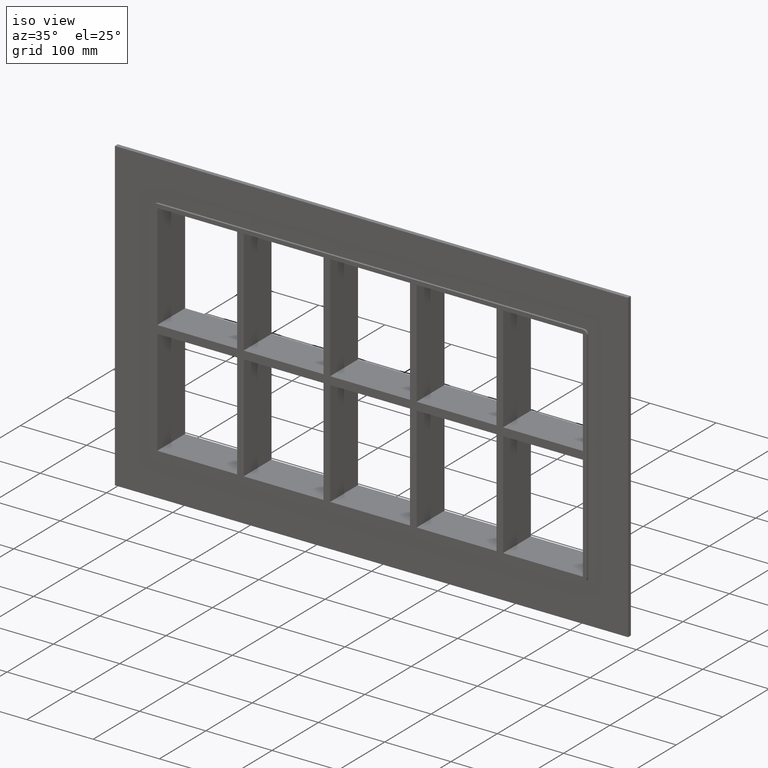
[diagram: clean part render]
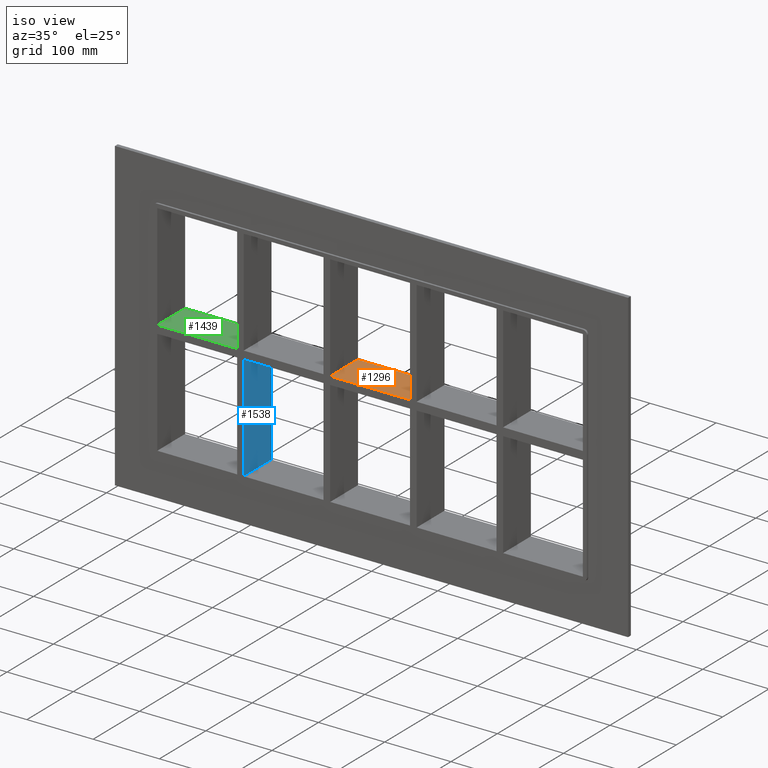
[diagram: same view with three faces highlighted in distinct colors, each labeled with its STEP entity id]
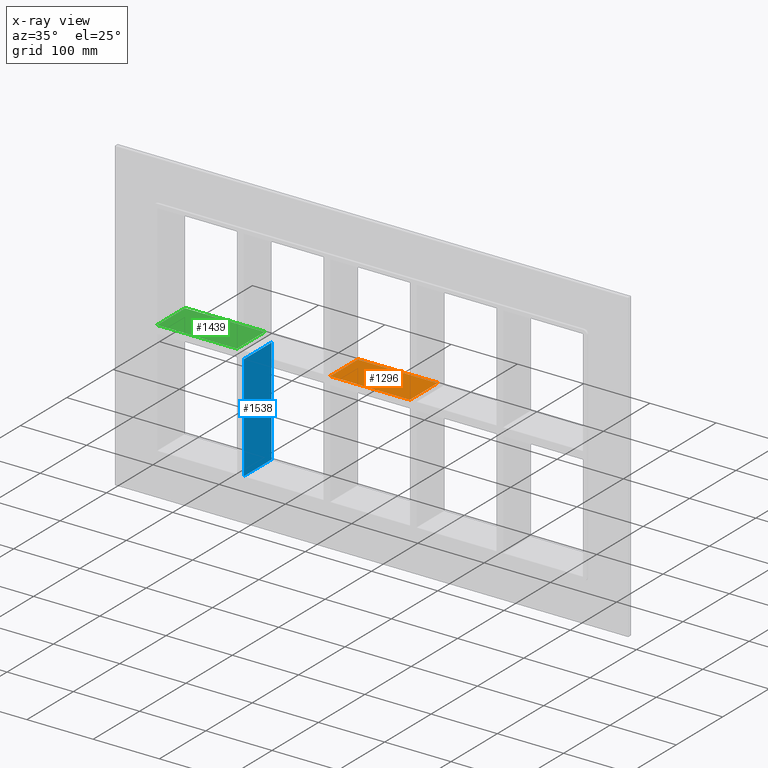
[diagram: x-ray of the same camera — body ghosted, the three highlighted faces saturated]
A machine part, iso view with three faces highlighted in distinct colors.
The next image is the same camera in x-ray (body ghosted, the three faces saturated) — at least one of them is partly hidden behind the body in this view.
Their STEP definitions:

[orange] entity #1296 — the highlighted planar face has unit normal (0, 0, 1).
#233=CARTESIAN_POINT('',(60.249999999998671,-3.0,5.999999999999943));
#234=VERTEX_POINT('',#233);
#235=CARTESIAN_POINT('',(60.249999999998671,57.0,5.999999999999943));
#236=VERTEX_POINT('',#235);
#237=CARTESIAN_POINT('',(60.24999999999865,-3.0,5.999999999999934));
#238=DIRECTION('',(0.0,1.0,0.0));
#239=VECTOR('',#238,60.0);
#240=LINE('',#237,#239);
#241=EDGE_CURVE('',#234,#236,#240,.T.);
#473=CARTESIAN_POINT('',(-60.250000000007269,57.0,5.999999999999943));
#474=VERTEX_POINT('',#473);
#475=CARTESIAN_POINT('',(-60.250000000007269,-3.0,5.999999999999943));
#476=VERTEX_POINT('',#475);
#477=CARTESIAN_POINT('',(-60.25000000000729,57.0,5.999999999999943));
#478=DIRECTION('',(0.0,-1.0,0.0));
#479=VECTOR('',#478,60.0);
#480=LINE('',#477,#479);
#481=EDGE_CURVE('',#474,#476,#480,.T.);
#767=CARTESIAN_POINT('',(-60.250000000007276,-3.0,5.999999999999943));
#768=DIRECTION('',(1.0,0.0,0.0));
#769=VECTOR('',#768,120.50000000000591);
#770=LINE('',#767,#769);
#771=EDGE_CURVE('',#476,#234,#770,.T.);
#1155=CARTESIAN_POINT('',(-60.250000000007276,57.0,5.999999999999943));
#1156=DIRECTION('',(1.0,0.0,0.0));
#1157=VECTOR('',#1156,120.50000000000591);
#1158=LINE('',#1155,#1157);
#1159=EDGE_CURVE('',#474,#236,#1158,.T.);
#1285=CARTESIAN_POINT('',(-321.24999999999972,-3.0,5.999999999999943));
#1286=DIRECTION('',(0.0,0.0,1.0));
#1287=DIRECTION('',(1.0,0.0,0.0));
#1288=AXIS2_PLACEMENT_3D('',#1285,#1286,#1287);
#1289=PLANE('',#1288);
#1290=ORIENTED_EDGE('',*,*,#241,.T.);
#1291=ORIENTED_EDGE('',*,*,#1159,.F.);
#1292=ORIENTED_EDGE('',*,*,#481,.T.);
#1293=ORIENTED_EDGE('',*,*,#771,.T.);
#1294=EDGE_LOOP('',(#1290,#1291,#1292,#1293));
#1295=FACE_OUTER_BOUND('',#1294,.T.);
#1296=ADVANCED_FACE('',(#1295),#1289,.T.);

[blue] entity #1538 — the highlighted planar face has unit normal (1, 0, 0).
#554=CARTESIAN_POINT('',(-190.75000000000728,57.0,-165.49999999998431));
#555=VERTEX_POINT('',#554);
#562=CARTESIAN_POINT('',(-190.75000000000728,-3.0,-165.49999999998425));
#563=VERTEX_POINT('',#562);
#564=CARTESIAN_POINT('',(-190.75000000000728,57.000000000000007,-165.5));
#565=DIRECTION('',(0.0,-1.0,0.0));
#566=VECTOR('',#565,60.000000000000007);
#567=LINE('',#564,#566);
#568=EDGE_CURVE('',#555,#563,#567,.T.);
#784=CARTESIAN_POINT('',(-190.75000000000728,-3.0,-6.000000000009308));
#785=VERTEX_POINT('',#784);
#786=CARTESIAN_POINT('',(-190.75000000000728,-3.0,-6.000000000009322));
#787=DIRECTION('',(0.0,0.0,-1.0));
#788=VECTOR('',#787,159.49999999997499);
#789=LINE('',#786,#788);
#790=EDGE_CURVE('',#785,#563,#789,.T.);
#969=CARTESIAN_POINT('',(-190.75000000000728,57.0,-6.000000000009308));
#970=VERTEX_POINT('',#969);
#971=CARTESIAN_POINT('',(-190.75000000000728,57.0,-6.000000000009315));
#972=DIRECTION('',(0.0,-1.0,0.0));
#973=VECTOR('',#972,60.0);
#974=LINE('',#971,#973);
#975=EDGE_CURVE('',#970,#785,#974,.T.);
#1165=CARTESIAN_POINT('',(-190.75000000000728,57.0,-6.000000000009322));
#1166=DIRECTION('',(0.0,0.0,-1.0));
#1167=VECTOR('',#1166,159.49999999997499);
#1168=LINE('',#1165,#1167);
#1169=EDGE_CURVE('',#970,#555,#1168,.T.);
#1527=CARTESIAN_POINT('',(-190.75000000000728,-3.0,165.5));
#1528=DIRECTION('',(1.0,0.0,0.0));
#1529=DIRECTION('',(0.0,0.0,-1.0));
#1530=AXIS2_PLACEMENT_3D('',#1527,#1528,#1529);
#1531=PLANE('',#1530);
#1532=ORIENTED_EDGE('',*,*,#975,.T.);
#1533=ORIENTED_EDGE('',*,*,#790,.T.);
#1534=ORIENTED_EDGE('',*,*,#568,.F.);
#1535=ORIENTED_EDGE('',*,*,#1169,.F.);
#1536=EDGE_LOOP('',(#1532,#1533,#1534,#1535));
#1537=FACE_OUTER_BOUND('',#1536,.T.);
#1538=ADVANCED_FACE('',(#1537),#1531,.T.);

[green] entity #1439 — the highlighted planar face has unit normal (0, 0, 1).
#869=CARTESIAN_POINT('',(-321.24999999999972,-3.0,5.999999999999943));
#870=VERTEX_POINT('',#869);
#887=CARTESIAN_POINT('',(-200.75000000000134,-3.0,5.999999999999943));
#888=VERTEX_POINT('',#887);
#895=CARTESIAN_POINT('',(-321.24999999999972,-3.0,5.999999999999943));
#896=DIRECTION('',(1.0,0.0,0.0));
#897=VECTOR('',#896,120.49999999999838);
#898=LINE('',#895,#897);
#899=EDGE_CURVE('',#870,#888,#898,.T.);
#1174=CARTESIAN_POINT('',(-321.24999999999972,57.0,5.999999999999943));
#1175=VERTEX_POINT('',#1174);
#1176=CARTESIAN_POINT('',(-200.75000000000134,57.0,5.999999999999943));
#1177=VERTEX_POINT('',#1176);
#1178=CARTESIAN_POINT('',(-321.24999999999972,57.0,5.999999999999943));
#1179=DIRECTION('',(1.0,0.0,0.0));
#1180=VECTOR('',#1179,120.49999999999838);
#1181=LINE('',#1178,#1180);
#1182=EDGE_CURVE('',#1175,#1177,#1181,.T.);
#1418=CARTESIAN_POINT('',(-321.24999999999972,-3.0,5.999999999999943));
#1419=DIRECTION('',(0.0,0.0,1.0));
#1420=DIRECTION('',(1.0,0.0,0.0));
#1421=AXIS2_PLACEMENT_3D('',#1418,#1419,#1420);
#1422=PLANE('',#1421);
#1423=CARTESIAN_POINT('',(-200.75000000000134,57.0,5.999999999999943));
#1424=DIRECTION('',(0.0,-1.0,0.0));
#1425=VECTOR('',#1424,60.0);
#1426=LINE('',#1423,#1425);
#1427=EDGE_CURVE('',#1177,#888,#1426,.T.);
#1428=ORIENTED_EDGE('',*,*,#1427,.F.);
#1429=ORIENTED_EDGE('',*,*,#1182,.F.);
#1430=CARTESIAN_POINT('',(-321.25,-3.0,5.999999999999943));
#1431=DIRECTION('',(0.0,1.0,0.0));
#1432=VECTOR('',#1431,60.000000000000007);
#1433=LINE('',#1430,#1432);
#1434=EDGE_CURVE('',#870,#1175,#1433,.T.);
#1435=ORIENTED_EDGE('',*,*,#1434,.F.);
#1436=ORIENTED_EDGE('',*,*,#899,.T.);
#1437=EDGE_LOOP('',(#1428,#1429,#1435,#1436));
#1438=FACE_OUTER_BOUND('',#1437,.T.);
#1439=ADVANCED_FACE('',(#1438),#1422,.T.);